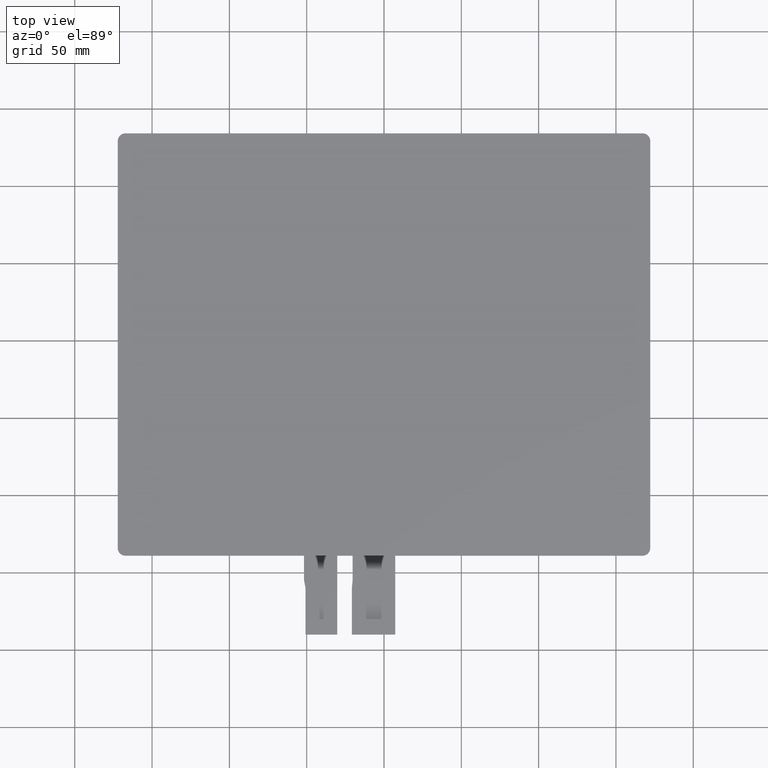
[diagram: clean part render]
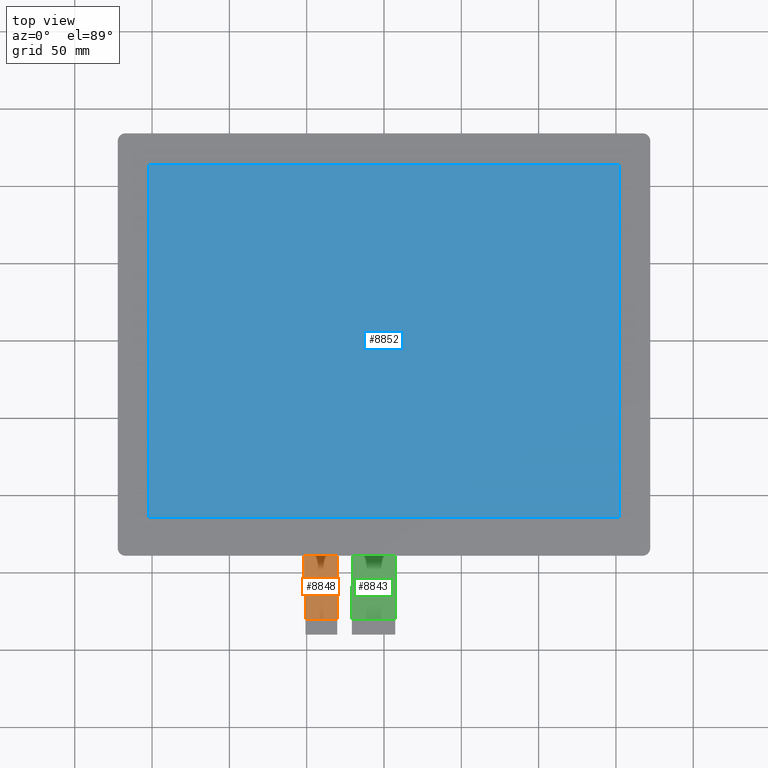
[diagram: same view with three faces highlighted in distinct colors, each labeled with its STEP entity id]
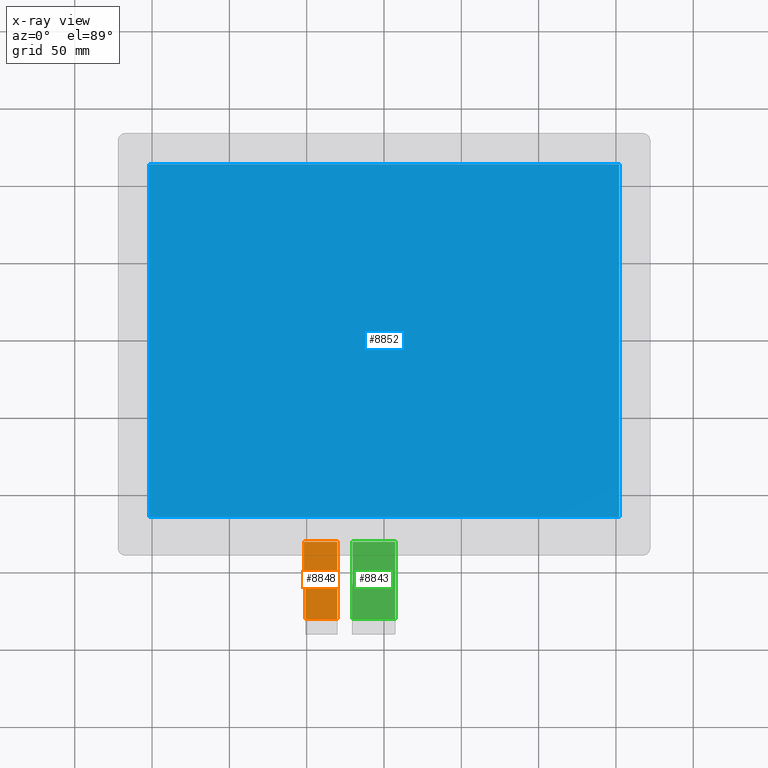
[diagram: x-ray of the same camera — body ghosted, the three highlighted faces saturated]
A machine part, top view with three faces highlighted in distinct colors.
The next image is the same camera in x-ray (body ghosted, the three faces saturated) — at least one of them is partly hidden behind the body in this view.
Their STEP definitions:

[orange] entity #8848 — the highlighted planar face has unit normal (0, 0, 1).
#481=FACE_OUTER_BOUND('',#908,.T.);
#908=EDGE_LOOP('',(#7961,#7962,#7963,#7964,#7965,#7966));
#2120=LINE('',#13859,#3365);
#2134=LINE('',#13887,#3379);
#2148=LINE('',#13914,#3393);
#2149=LINE('',#13918,#3394);
#2153=LINE('',#13925,#3398);
#2155=LINE('',#13928,#3400);
#3365=VECTOR('',#11339,10.);
#3379=VECTOR('',#11365,10.);
#3393=VECTOR('',#11391,10.);
#3394=VECTOR('',#11394,10.);
#3398=VECTOR('',#11400,10.);
#3400=VECTOR('',#11404,10.);
#4223=VERTEX_POINT('',#13856);
#4224=VERTEX_POINT('',#13858);
#4232=VERTEX_POINT('',#13886);
#4239=VERTEX_POINT('',#13912);
#4240=VERTEX_POINT('',#13916);
#4241=VERTEX_POINT('',#13917);
#5458=EDGE_CURVE('',#4224,#4223,#2120,.T.);
#5472=EDGE_CURVE('',#4223,#4232,#2134,.T.);
#5486=EDGE_CURVE('',#4232,#4239,#2148,.T.);
#5487=EDGE_CURVE('',#4240,#4241,#2149,.T.);
#5491=EDGE_CURVE('',#4241,#4224,#2153,.T.);
#5493=EDGE_CURVE('',#4240,#4239,#2155,.T.);
#7961=ORIENTED_EDGE('',*,*,#5472,.T.);
#7962=ORIENTED_EDGE('',*,*,#5486,.T.);
#7963=ORIENTED_EDGE('',*,*,#5493,.F.);
#7964=ORIENTED_EDGE('',*,*,#5487,.T.);
#7965=ORIENTED_EDGE('',*,*,#5491,.T.);
#7966=ORIENTED_EDGE('',*,*,#5458,.T.);
#8423=PLANE('',#9305);
#8848=ADVANCED_FACE('',(#481),#8423,.T.);
#9305=AXIS2_PLACEMENT_3D('',#13927,#11402,#11403);
#11339=DIRECTION('',(0.,-1.,0.));
#11365=DIRECTION('',(1.,0.,0.));
#11391=DIRECTION('',(-4.44089209850063E-16,1.,0.));
#11394=DIRECTION('',(3.61261870245132E-16,-1.,0.));
#11400=DIRECTION('',(0.190808995376546,-0.981627183447664,0.));
#11402=DIRECTION('center_axis',(0.,0.,1.));
#11403=DIRECTION('ref_axis',(1.,0.,0.));
#11404=DIRECTION('',(1.,1.65037798643566E-16,0.));
#13856=CARTESIAN_POINT('',(-50.75,-180.05,-1.25));
#13858=CARTESIAN_POINT('',(-50.75,-159.78,-1.25));
#13859=CARTESIAN_POINT('',(-50.75,-159.78,-1.25));
#13886=CARTESIAN_POINT('',(-30.25,-180.05,-1.25));
#13887=CARTESIAN_POINT('',(-35.625,-180.05,-1.25));
#13912=CARTESIAN_POINT('',(-30.25,-130.05,-1.25));
#13914=CARTESIAN_POINT('',(-30.25,-190.05,-1.25));
#13916=CARTESIAN_POINT('',(-51.75,-130.05,-1.25));
#13917=CARTESIAN_POINT('',(-51.75,-154.63544598403,-1.25));
#13918=CARTESIAN_POINT('',(-51.75,-130.05,-1.25));
#13925=CARTESIAN_POINT('',(-51.75,-154.63544598403,-1.25));
#13927=CARTESIAN_POINT('Origin',(-41.,-160.05,-1.25));
#13928=CARTESIAN_POINT('',(59.35,-130.05,-1.25));

[blue] entity #8852 — the highlighted planar face has unit normal (0, 0, 1).
#485=FACE_OUTER_BOUND('',#912,.T.);
#912=EDGE_LOOP('',(#7981,#7982,#7983,#7984));
#940=LINE('',#11488,#2185);
#941=LINE('',#11490,#2186);
#942=LINE('',#11492,#2187);
#943=LINE('',#11493,#2188);
#2185=VECTOR('',#9365,10.);
#2186=VECTOR('',#9366,10.);
#2187=VECTOR('',#9367,10.);
#2188=VECTOR('',#9368,10.);
#3429=VERTEX_POINT('',#11486);
#3430=VERTEX_POINT('',#11487);
#3431=VERTEX_POINT('',#11489);
#3432=VERTEX_POINT('',#11491);
#4273=EDGE_CURVE('',#3429,#3430,#940,.T.);
#4274=EDGE_CURVE('',#3431,#3429,#941,.T.);
#4275=EDGE_CURVE('',#3432,#3431,#942,.T.);
#4276=EDGE_CURVE('',#3430,#3432,#943,.T.);
#7981=ORIENTED_EDGE('',*,*,#4273,.T.);
#7982=ORIENTED_EDGE('',*,*,#4276,.T.);
#7983=ORIENTED_EDGE('',*,*,#4275,.T.);
#7984=ORIENTED_EDGE('',*,*,#4274,.T.);
#8427=PLANE('',#9309);
#8852=ADVANCED_FACE('',(#485),#8427,.T.);
#9309=AXIS2_PLACEMENT_3D('',#13933,#11412,#11413);
#9365=DIRECTION('',(0.,1.,0.));
#9366=DIRECTION('',(1.,0.,0.));
#9367=DIRECTION('',(0.,-1.,0.));
#9368=DIRECTION('',(-1.,0.,0.));
#11412=DIRECTION('center_axis',(0.,0.,1.));
#11413=DIRECTION('ref_axis',(1.,0.,0.));
#11486=CARTESIAN_POINT('',(152.1,-114.05,1.8));
#11487=CARTESIAN_POINT('',(152.1,114.05,1.8));
#11488=CARTESIAN_POINT('',(152.1,-58.25,1.8));
#11489=CARTESIAN_POINT('',(-152.1,-114.05,1.8));
#11490=CARTESIAN_POINT('',(-76.05,-114.05,1.8));
#11491=CARTESIAN_POINT('',(-152.1,114.05,1.8));
#11492=CARTESIAN_POINT('',(-152.1,55.8,1.8));
#11493=CARTESIAN_POINT('',(76.05,114.05,1.8));
#13933=CARTESIAN_POINT('Origin',(-3.5527136788005E-14,-2.44999999999999,
1.8));

[green] entity #8843 — the highlighted planar face has unit normal (0, 0, 1).
#476=FACE_OUTER_BOUND('',#903,.T.);
#903=EDGE_LOOP('',(#7933,#7934,#7935,#7936,#7937,#7938));
#962=LINE('',#11542,#2207);
#2128=LINE('',#13875,#3373);
#2132=LINE('',#13882,#3377);
#2138=LINE('',#13896,#3383);
#2142=LINE('',#13903,#3387);
#2144=LINE('',#13906,#3389);
#2207=VECTOR('',#9411,10.);
#3373=VECTOR('',#11351,10.);
#3377=VECTOR('',#11359,10.);
#3383=VECTOR('',#11373,10.);
#3387=VECTOR('',#11379,10.);
#3389=VECTOR('',#11383,10.);
#3449=VERTEX_POINT('',#11539);
#3450=VERTEX_POINT('',#11541);
#4229=VERTEX_POINT('',#13872);
#4230=VERTEX_POINT('',#13874);
#4234=VERTEX_POINT('',#13894);
#4235=VERTEX_POINT('',#13895);
#4300=EDGE_CURVE('',#3450,#3449,#962,.T.);
#5466=EDGE_CURVE('',#4230,#4229,#2128,.T.);
#5470=EDGE_CURVE('',#4229,#3450,#2132,.T.);
#5476=EDGE_CURVE('',#4234,#4235,#2138,.T.);
#5480=EDGE_CURVE('',#4235,#4230,#2142,.T.);
#5482=EDGE_CURVE('',#4234,#3449,#2144,.T.);
#7933=ORIENTED_EDGE('',*,*,#5470,.T.);
#7934=ORIENTED_EDGE('',*,*,#4300,.T.);
#7935=ORIENTED_EDGE('',*,*,#5482,.F.);
#7936=ORIENTED_EDGE('',*,*,#5476,.T.);
#7937=ORIENTED_EDGE('',*,*,#5480,.T.);
#7938=ORIENTED_EDGE('',*,*,#5466,.T.);
#8418=PLANE('',#9300);
#8843=ADVANCED_FACE('',(#476),#8418,.T.);
#9300=AXIS2_PLACEMENT_3D('',#13905,#11381,#11382);
#9411=DIRECTION('',(3.70074341541719E-17,1.,0.));
#11351=DIRECTION('',(4.4114822170536E-16,-1.,0.));
#11359=DIRECTION('',(1.,0.,0.));
#11373=DIRECTION('',(1.85037170770859E-16,-1.,0.));
#11379=DIRECTION('',(-0.0858883421530155,-0.996304768974939,0.));
#11381=DIRECTION('center_axis',(0.,0.,1.));
#11382=DIRECTION('ref_axis',(1.,0.,0.));
#11383=DIRECTION('',(1.,1.65037798643566E-16,0.));
#11539=CARTESIAN_POINT('',(7.24999999999998,-130.05,-1.25));
#11541=CARTESIAN_POINT('',(7.24999999999998,-180.05,-1.25));
#11542=CARTESIAN_POINT('',(7.24999999999998,-190.05,-1.25));
#13872=CARTESIAN_POINT('',(-20.75,-180.05,-1.25));
#13874=CARTESIAN_POINT('',(-20.75,-159.85,-1.25));
#13875=CARTESIAN_POINT('',(-20.75,-159.85,-1.25));
#13882=CARTESIAN_POINT('',(0.249999999999975,-180.05,-1.25));
#13894=CARTESIAN_POINT('',(-20.25,-130.05,-1.25));
#13895=CARTESIAN_POINT('',(-20.25,-154.05,-1.25));
#13896=CARTESIAN_POINT('',(-20.25,-130.05,-1.25));
#13903=CARTESIAN_POINT('',(-20.25,-154.05,-1.25));
#13905=CARTESIAN_POINT('Origin',(-6.75000000000003,-160.05,-1.25));
#13906=CARTESIAN_POINT('',(76.475,-130.05,-1.25));